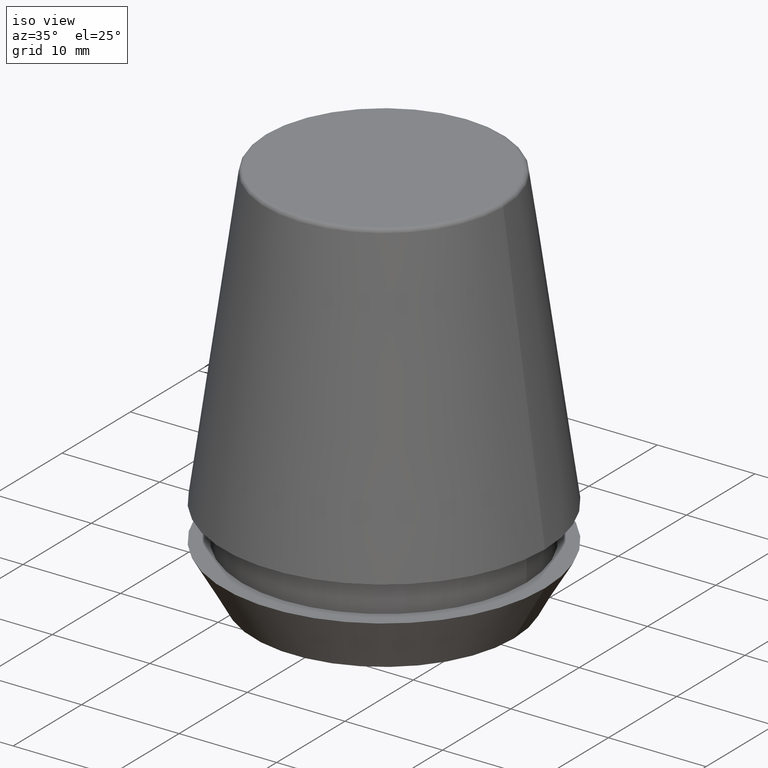
[diagram: clean part render]
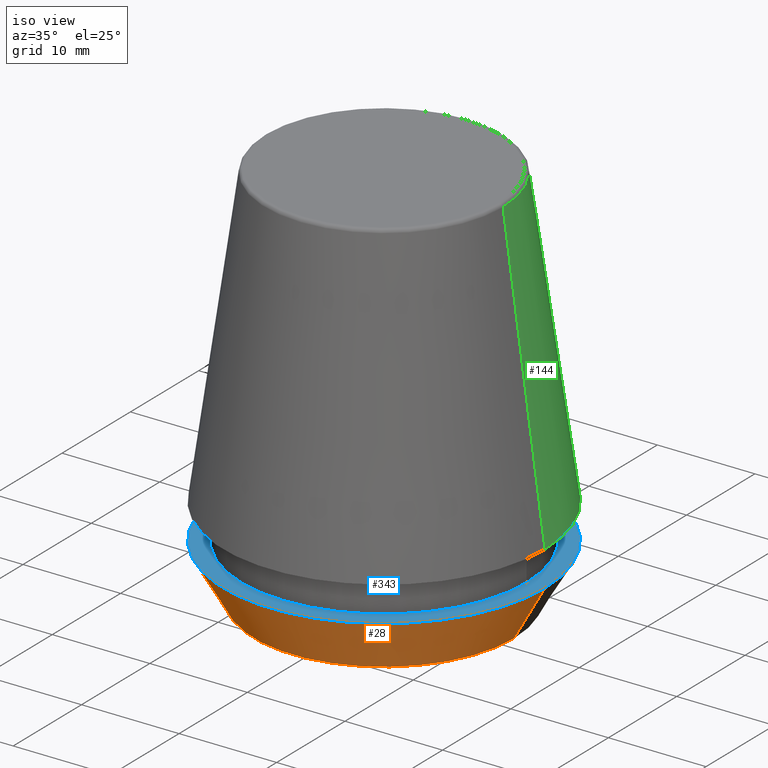
[diagram: same view with three faces highlighted in distinct colors, each labeled with its STEP entity id]
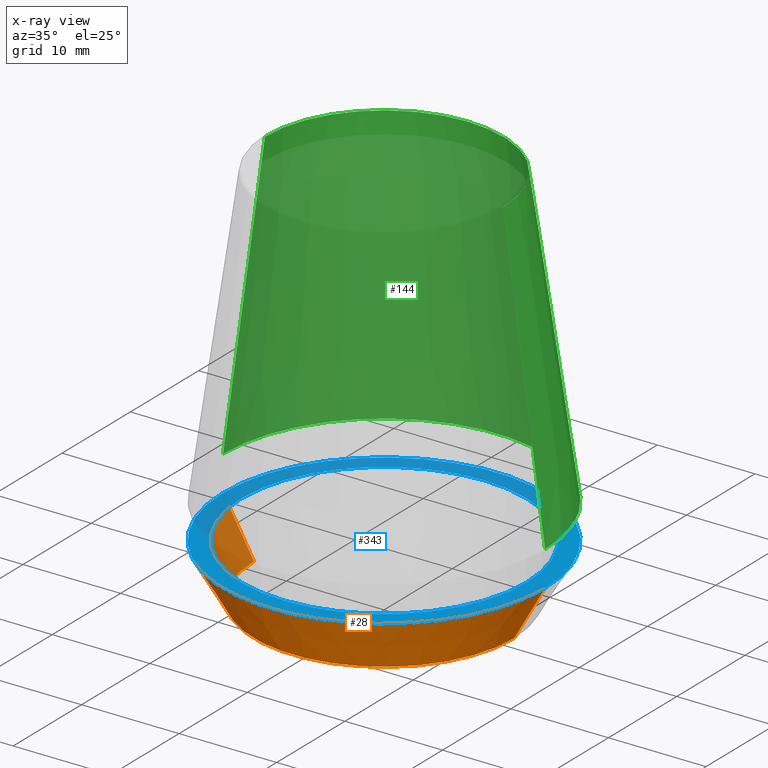
[diagram: x-ray of the same camera — body ghosted, the three highlighted faces saturated]
A machine part, iso view with three faces highlighted in distinct colors.
The next image is the same camera in x-ray (body ghosted, the three faces saturated) — at least one of them is partly hidden behind the body in this view.
Their STEP definitions:

[orange] entity #28 — the highlighted conical surface has half-angle 30 deg.
#3 = CIRCLE ( 'NONE', #355, 16.50000000000000000 ) ;
#14 = CARTESIAN_POINT ( 'NONE',  ( 0.0000000000000000000, 0.0000000000000000000, 0.0000000000000000000 ) ) ;
#18 = CARTESIAN_POINT ( 'NONE',  ( 13.32457351945710200, 0.0000000000000000000, 0.0000000000000000000 ) ) ;
#22 = EDGE_CURVE ( 'NONE', #27, #234, #117, .T. ) ;
#27 = VERTEX_POINT ( 'NONE', #106 ) ;
#28 = ADVANCED_FACE ( 'NONE', ( #31 ), #252, .T. ) ;
#31 = FACE_OUTER_BOUND ( 'NONE', #344, .T. ) ;
#37 = VECTOR ( 'NONE', #49, 999.9999999999998900 ) ;
#49 = DIRECTION ( 'NONE',  ( 0.4999999999999947300, 0.0000000000000000000, 0.8660254037844418200 ) ) ;
#62 = AXIS2_PLACEMENT_3D ( 'NONE', #14, #277, #256 ) ;
#83 = ORIENTED_EDGE ( 'NONE', *, *, #313, .F. ) ;
#92 = DIRECTION ( 'NONE',  ( -0.0000000000000000000, -0.0000000000000000000, 1.000000000000000000 ) ) ;
#106 = CARTESIAN_POINT ( 'NONE',  ( 13.32457351945710200, 0.0000000000000000000, 0.0000000000000000000 ) ) ;
#114 = ORIENTED_EDGE ( 'NONE', *, *, #189, .F. ) ;
#117 = LINE ( 'NONE', #18, #37 ) ;
#119 = ORIENTED_EDGE ( 'NONE', *, *, #22, .T. ) ;
#129 = VERTEX_POINT ( 'NONE', #378 ) ;
#132 = AXIS2_PLACEMENT_3D ( 'NONE', #349, #184, #382 ) ;
#148 = VERTEX_POINT ( 'NONE', #286 ) ;
#164 = DIRECTION ( 'NONE',  ( -0.4999999999999947300, 6.123233995736700700E-017, 0.8660254037844418200 ) ) ;
#174 = CIRCLE ( 'NONE', #132, 13.32457351945710200 ) ;
#184 = DIRECTION ( 'NONE',  ( -0.0000000000000000000, -0.0000000000000000000, 1.000000000000000000 ) ) ;
#189 = EDGE_CURVE ( 'NONE', #148, #234, #3, .T. ) ;
#191 = EDGE_CURVE ( 'NONE', #129, #27, #174, .T. ) ;
#199 = ORIENTED_EDGE ( 'NONE', *, *, #191, .T. ) ;
#234 = VERTEX_POINT ( 'NONE', #235 ) ;
#235 = CARTESIAN_POINT ( 'NONE',  ( 16.50000000000000000, 0.0000000000000000000, 5.500000000000005300 ) ) ;
#252 = CONICAL_SURFACE ( 'NONE', #62, 13.32457351945710200, 0.5235987755982927100 ) ;
#256 = DIRECTION ( 'NONE',  ( 1.000000000000000000, 0.0000000000000000000, 0.0000000000000000000 ) ) ;
#269 = CARTESIAN_POINT ( 'NONE',  ( 0.0000000000000000000, 0.0000000000000000000, 5.500000000000005300 ) ) ;
#277 = DIRECTION ( 'NONE',  ( -0.0000000000000000000, -0.0000000000000000000, 1.000000000000000000 ) ) ;
#286 = CARTESIAN_POINT ( 'NONE',  ( -16.50000000000000000, 2.020667218593133100E-015, 5.500000000000005300 ) ) ;
#287 = DIRECTION ( 'NONE',  ( 1.000000000000000000, 0.0000000000000000000, 0.0000000000000000000 ) ) ;
#289 = LINE ( 'NONE', #363, #359 ) ;
#313 = EDGE_CURVE ( 'NONE', #129, #148, #289, .T. ) ;
#344 = EDGE_LOOP ( 'NONE', ( #83, #199, #119, #114 ) ) ;
#349 = CARTESIAN_POINT ( 'NONE',  ( 0.0000000000000000000, 0.0000000000000000000, 0.0000000000000000000 ) ) ;
#355 = AXIS2_PLACEMENT_3D ( 'NONE', #269, #92, #287 ) ;
#359 = VECTOR ( 'NONE', #164, 999.9999999999998900 ) ;
#363 = CARTESIAN_POINT ( 'NONE',  ( -13.32457351945710200, 1.631789631060672300E-015, 0.0000000000000000000 ) ) ;
#378 = CARTESIAN_POINT ( 'NONE',  ( -13.32457351945710200, 1.826228424826902600E-015, 0.0000000000000000000 ) ) ;
#382 = DIRECTION ( 'NONE',  ( 1.000000000000000000, 0.0000000000000000000, 0.0000000000000000000 ) ) ;

[blue] entity #343 — the highlighted planar face has unit normal (0, 0, -1).
#3 = CIRCLE ( 'NONE', #355, 16.50000000000000000 ) ;
#9 = ORIENTED_EDGE ( 'NONE', *, *, #250, .F. ) ;
#23 = EDGE_LOOP ( 'NONE', ( #9, #97 ) ) ;
#36 = DIRECTION ( 'NONE',  ( 1.000000000000000000, 0.0000000000000000000, 0.0000000000000000000 ) ) ;
#39 = AXIS2_PLACEMENT_3D ( 'NONE', #79, #278, #111 ) ;
#41 = EDGE_CURVE ( 'NONE', #234, #148, #266, .T. ) ;
#79 = CARTESIAN_POINT ( 'NONE',  ( 0.0000000000000000000, 0.0000000000000000000, 5.500000000000005300 ) ) ;
#84 = ORIENTED_EDGE ( 'NONE', *, *, #41, .T. ) ;
#85 = CARTESIAN_POINT ( 'NONE',  ( 0.0000000000000000000, 0.0000000000000000000, 5.500000000000005300 ) ) ;
#89 = CARTESIAN_POINT ( 'NONE',  ( -14.60000000000000000, 1.787984326755135800E-015, 5.500000000000005300 ) ) ;
#92 = DIRECTION ( 'NONE',  ( -0.0000000000000000000, -0.0000000000000000000, 1.000000000000000000 ) ) ;
#97 = ORIENTED_EDGE ( 'NONE', *, *, #180, .F. ) ;
#111 = DIRECTION ( 'NONE',  ( 1.000000000000000000, 0.0000000000000000000, 0.0000000000000000000 ) ) ;
#133 = DIRECTION ( 'NONE',  ( -1.000000000000000000, 0.0000000000000000000, -0.0000000000000000000 ) ) ;
#148 = VERTEX_POINT ( 'NONE', #286 ) ;
#150 = ORIENTED_EDGE ( 'NONE', *, *, #189, .T. ) ;
#180 = EDGE_CURVE ( 'NONE', #190, #233, #302, .T. ) ;
#183 = AXIS2_PLACEMENT_3D ( 'NONE', #223, #298, #133 ) ;
#189 = EDGE_CURVE ( 'NONE', #148, #234, #3, .T. ) ;
#190 = VERTEX_POINT ( 'NONE', #89 ) ;
#210 = DIRECTION ( 'NONE',  ( 1.000000000000000000, 0.0000000000000000000, 0.0000000000000000000 ) ) ;
#212 = FACE_BOUND ( 'NONE', #23, .T. ) ;
#223 = CARTESIAN_POINT ( 'NONE',  ( 0.0000000000000000000, 16.50000000000000000, 5.500000000000002700 ) ) ;
#232 = CIRCLE ( 'NONE', #39, 14.60000000000000000 ) ;
#233 = VERTEX_POINT ( 'NONE', #242 ) ;
#234 = VERTEX_POINT ( 'NONE', #235 ) ;
#235 = CARTESIAN_POINT ( 'NONE',  ( 16.50000000000000000, 0.0000000000000000000, 5.500000000000005300 ) ) ;
#242 = CARTESIAN_POINT ( 'NONE',  ( 14.60000000000000000, 0.0000000000000000000, 5.500000000000005300 ) ) ;
#250 = EDGE_CURVE ( 'NONE', #233, #190, #232, .T. ) ;
#253 = EDGE_LOOP ( 'NONE', ( #84, #150 ) ) ;
#260 = PLANE ( 'NONE',  #183 ) ;
#266 = CIRCLE ( 'NONE', #377, 16.50000000000000000 ) ;
#269 = CARTESIAN_POINT ( 'NONE',  ( 0.0000000000000000000, 0.0000000000000000000, 5.500000000000005300 ) ) ;
#278 = DIRECTION ( 'NONE',  ( -0.0000000000000000000, -0.0000000000000000000, 1.000000000000000000 ) ) ;
#281 = FACE_OUTER_BOUND ( 'NONE', #253, .T. ) ;
#286 = CARTESIAN_POINT ( 'NONE',  ( -16.50000000000000000, 2.020667218593133100E-015, 5.500000000000005300 ) ) ;
#287 = DIRECTION ( 'NONE',  ( 1.000000000000000000, 0.0000000000000000000, 0.0000000000000000000 ) ) ;
#298 = DIRECTION ( 'NONE',  ( 0.0000000000000000000, 0.0000000000000000000, -1.000000000000000000 ) ) ;
#302 = CIRCLE ( 'NONE', #352, 14.60000000000000000 ) ;
#322 = CARTESIAN_POINT ( 'NONE',  ( 0.0000000000000000000, 0.0000000000000000000, 5.500000000000005300 ) ) ;
#343 = ADVANCED_FACE ( 'NONE', ( #212, #281 ), #260, .F. ) ;
#352 = AXIS2_PLACEMENT_3D ( 'NONE', #85, #380, #210 ) ;
#355 = AXIS2_PLACEMENT_3D ( 'NONE', #269, #92, #287 ) ;
#356 = DIRECTION ( 'NONE',  ( -0.0000000000000000000, -0.0000000000000000000, 1.000000000000000000 ) ) ;
#377 = AXIS2_PLACEMENT_3D ( 'NONE', #322, #356, #36 ) ;
#380 = DIRECTION ( 'NONE',  ( -0.0000000000000000000, -0.0000000000000000000, 1.000000000000000000 ) ) ;

[green] entity #144 — the highlighted conical surface has half-angle 8 deg.
#30 = CARTESIAN_POINT ( 'NONE',  ( 12.20600611160694300, 1.757755848304969800E-015, 39.65566924038402900 ) ) ;
#33 = AXIS2_PLACEMENT_3D ( 'NONE', #108, #299, #135 ) ;
#44 = VERTEX_POINT ( 'NONE', #45 ) ;
#45 = CARTESIAN_POINT ( 'NONE',  ( -16.50032537154048700, 0.0000000000000000000, 9.099999999999997900 ) ) ;
#63 = DIRECTION ( 'NONE',  ( -0.1391731009600586900, 0.0000000000000000000, -0.9902680687415712500 ) ) ;
#80 = AXIS2_PLACEMENT_3D ( 'NONE', #113, #309, #141 ) ;
#81 = CIRCLE ( 'NONE', #33, 12.20600611160694300 ) ;
#82 = LINE ( 'NONE', #121, #91 ) ;
#86 = DIRECTION ( 'NONE',  ( 0.1391731009600586900, 1.704378926181473100E-017, -0.9902680687415712500 ) ) ;
#91 = VECTOR ( 'NONE', #63, 1000.000000000000000 ) ;
#108 = CARTESIAN_POINT ( 'NONE',  ( 0.0000000000000000000, 0.0000000000000000000, 39.65566924038402900 ) ) ;
#113 = CARTESIAN_POINT ( 'NONE',  ( 0.0000000000000000000, 0.0000000000000000000, 9.099999999999997900 ) ) ;
#116 = DIRECTION ( 'NONE',  ( 0.0000000000000000000, 0.0000000000000000000, -1.000000000000000000 ) ) ;
#121 = CARTESIAN_POINT ( 'NONE',  ( -16.50032537154048700, 0.0000000000000000000, 9.099999999999997900 ) ) ;
#125 = EDGE_LOOP ( 'NONE', ( #280, #270, #354, #255 ) ) ;
#135 = DIRECTION ( 'NONE',  ( 1.000000000000000000, 0.0000000000000000000, 0.0000000000000000000 ) ) ;
#139 = VERTEX_POINT ( 'NONE', #30 ) ;
#141 = DIRECTION ( 'NONE',  ( 1.000000000000000000, 0.0000000000000000000, 0.0000000000000000000 ) ) ;
#144 = ADVANCED_FACE ( 'NONE', ( #305 ), #156, .T. ) ;
#156 = CONICAL_SURFACE ( 'NONE', #265, 16.50032537154048700, 0.1396263401595395900 ) ;
#163 = VERTEX_POINT ( 'NONE', #192 ) ;
#179 = CARTESIAN_POINT ( 'NONE',  ( 16.50032537154048700, 2.020707065114692300E-015, 9.099999999999997900 ) ) ;
#192 = CARTESIAN_POINT ( 'NONE',  ( -12.20600611160694300, 0.0000000000000000000, 39.65566924038402900 ) ) ;
#194 = CARTESIAN_POINT ( 'NONE',  ( 16.50032537154048700, 2.020707065114692300E-015, 9.099999999999997900 ) ) ;
#206 = CARTESIAN_POINT ( 'NONE',  ( 0.0000000000000000000, 0.0000000000000000000, 9.099999999999997900 ) ) ;
#208 = DIRECTION ( 'NONE',  ( -1.000000000000000000, 0.0000000000000000000, 0.0000000000000000000 ) ) ;
#215 = EDGE_CURVE ( 'NONE', #163, #44, #82, .T. ) ;
#217 = EDGE_CURVE ( 'NONE', #385, #44, #303, .T. ) ;
#231 = EDGE_CURVE ( 'NONE', #139, #385, #381, .T. ) ;
#238 = EDGE_CURVE ( 'NONE', #139, #163, #81, .T. ) ;
#255 = ORIENTED_EDGE ( 'NONE', *, *, #215, .F. ) ;
#265 = AXIS2_PLACEMENT_3D ( 'NONE', #206, #116, #208 ) ;
#270 = ORIENTED_EDGE ( 'NONE', *, *, #231, .T. ) ;
#280 = ORIENTED_EDGE ( 'NONE', *, *, #238, .F. ) ;
#292 = VECTOR ( 'NONE', #86, 1000.000000000000000 ) ;
#299 = DIRECTION ( 'NONE',  ( -0.0000000000000000000, -0.0000000000000000000, 1.000000000000000000 ) ) ;
#303 = CIRCLE ( 'NONE', #80, 16.50032537154048700 ) ;
#305 = FACE_OUTER_BOUND ( 'NONE', #125, .T. ) ;
#309 = DIRECTION ( 'NONE',  ( -0.0000000000000000000, -0.0000000000000000000, 1.000000000000000000 ) ) ;
#354 = ORIENTED_EDGE ( 'NONE', *, *, #217, .T. ) ;
#381 = LINE ( 'NONE', #179, #292 ) ;
#385 = VERTEX_POINT ( 'NONE', #194 ) ;